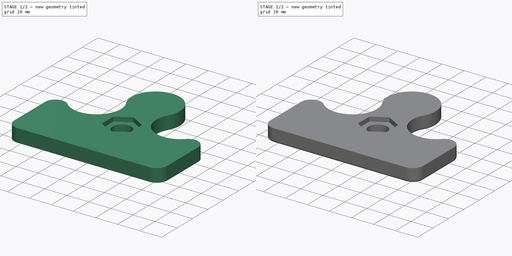
[diagram: build sequence overview — one tinted view per stage of 2, left to right]
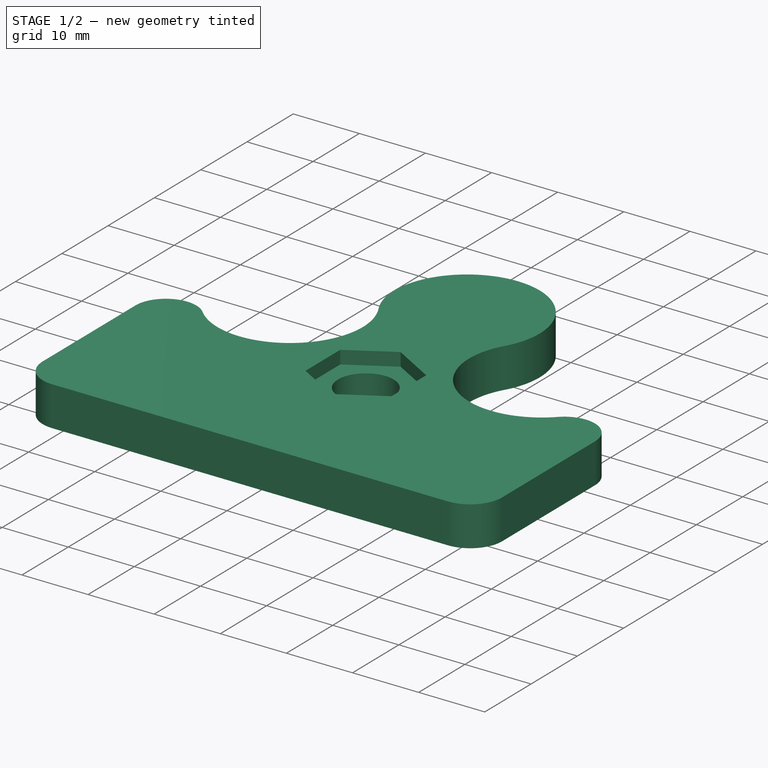
[diagram: stage 1 of 2 — iso view after this stage's code; geometry added in this stage tinted green]
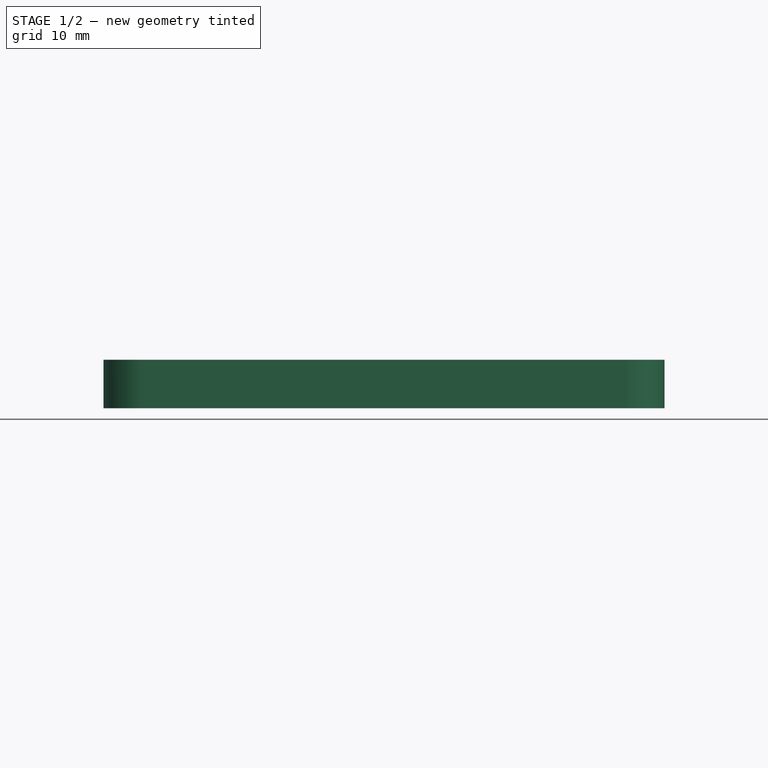
[diagram: stage 1 of 2 — front view after this stage's code; geometry added in this stage tinted green]
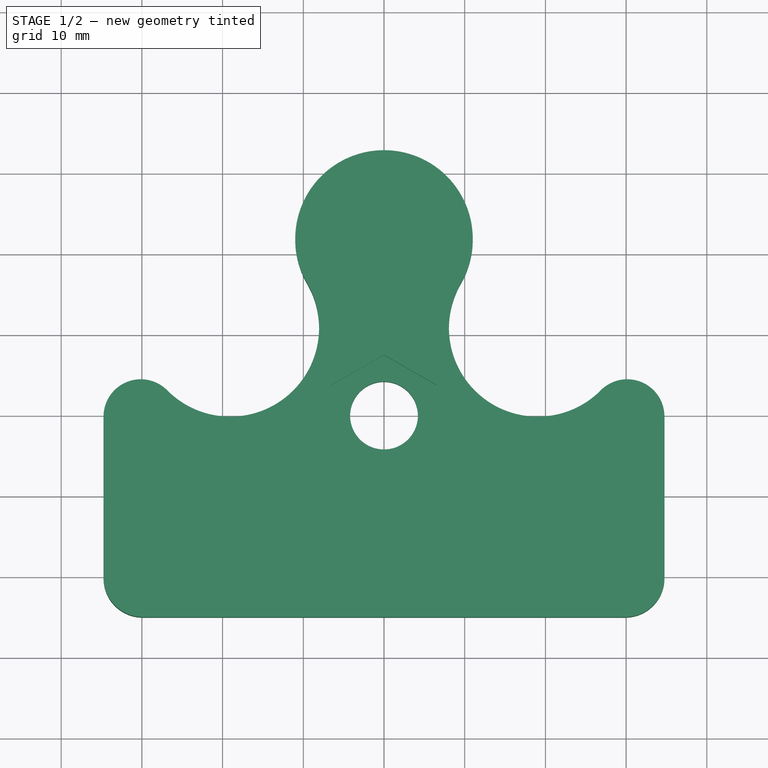
[diagram: stage 1 of 2 — top view after this stage's code; geometry added in this stage tinted green]
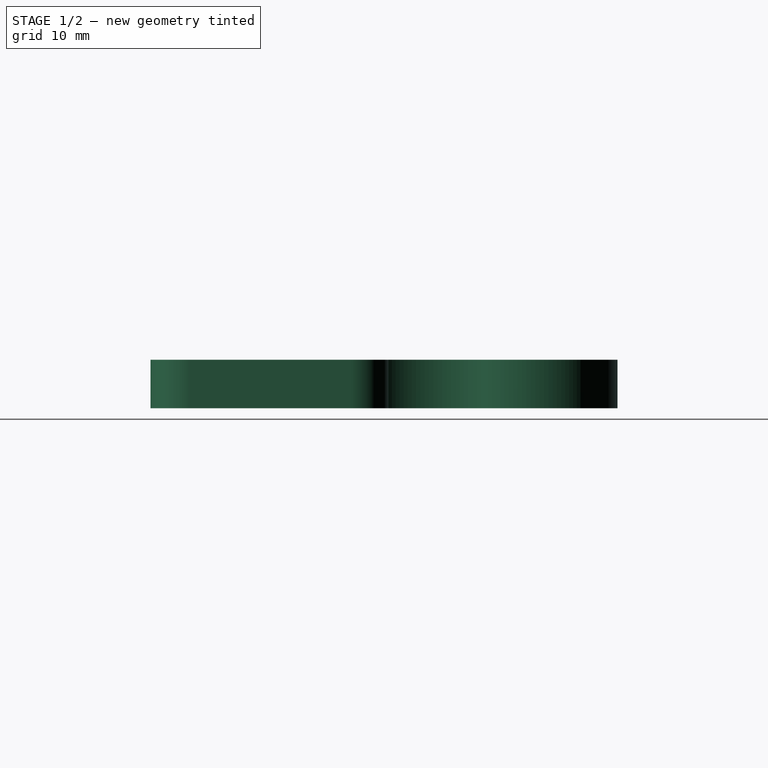
[diagram: stage 1 of 2 — right view after this stage's code; geometry added in this stage tinted green]
FCSTD DOCUMENT  (FreeCAD 0.19R24291 (Git))
Label: Переворотный механизм
License: All rights reserved
LicenseURL: http://en.wikipedia.org/wiki/All_rights_reserved
objects: Sketcher::SketchObject×2, Part::Feature×1, PartDesign::Pad×1, PartDesign::Pocket×1, PartDesign::Fillet×1, PartDesign::Body×1
note: 10 computed .brp shape members not serialized (recipe doc carries the construction recipe); baked Part::Feature solids carry a one-line shape summary decoded from their .brp

FEATURE [Part::Feature] Part__Feature  label="Shapes"
  shape: bbox 70.62 x 59.3 x 10 mm, 49 faces (baked)
FEATURE [Sketcher::SketchObject] Sketch
  FullyConstrained = false
  MapMode = 5
  Support = -> [XY_Plane]
  sketch-geometry (11):
    g0: ArcOfCircle CenterX=0 CenterY=21.8515 CenterZ=0 NormalX=0 NormalY=0 NormalZ=1 AngleXU=0 Radius=11 StartAngle=5.75864 EndAngle=9.94933
    g1: ArcOfCircle CenterX=19.0421 CenterY=10.8334 CenterZ=0 NormalX=0 NormalY=0 NormalZ=1 AngleXU=0 Radius=11 StartAngle=2.61704 EndAngle=5.50287
    g2: ArcOfCircle CenterX=30.1376 CenterY=-0.15 CenterZ=0 NormalX=0 NormalY=0 NormalZ=1 AngleXU=0 Radius=4.61236 StartAngle=5.11764e-08 EndAngle=2.36127
    g3: ArcOfCircle CenterX=29.9 CenterY=-20.15 CenterZ=0 NormalX=0 NormalY=0 NormalZ=1 AngleXU=0 Radius=4.85 StartAngle=4.71239 EndAngle=6.28319
    g4: ArcOfCircle CenterX=-29.9 CenterY=-20.15 CenterZ=0 NormalX=0 NormalY=0 NormalZ=1 AngleXU=0 Radius=4.85 StartAngle=3.14159 EndAngle=4.71239
    g5: ArcOfCircle CenterX=-30.1376 CenterY=-0.15 CenterZ=0 NormalX=0 NormalY=0 NormalZ=1 AngleXU=0 Radius=4.61236 StartAngle=0.780319 EndAngle=3.14159
    g6: ArcOfCircle CenterX=-19.0421 CenterY=10.8334 CenterZ=0 NormalX=0 NormalY=0 NormalZ=1 AngleXU=0 Radius=11 StartAngle=3.92191 EndAngle=6.80773
    g7: LineSegment StartX=-34.75 StartY=-0.15 StartZ=0 EndX=-34.75 EndY=-20.15 EndZ=0
    g8: LineSegment StartX=34.75 StartY=-0.15 StartZ=0 EndX=34.75 EndY=-20.15 EndZ=0
    g9: LineSegment StartX=-29.9 StartY=-25 StartZ=0 EndX=29.9 EndY=-25 EndZ=0
    g10: Circle CenterX=0 CenterY=0 CenterZ=0 NormalX=0 NormalY=0 NormalZ=1 AngleXU=0 Radius=4.2
  constraints (34):
    c: Coincident(g9,g4)
    c: Coincident(g4,g7)
    c: Coincident(g7,g5)
    c: Coincident(g5,g6)
    c: Coincident(g6,g0)
    c: Coincident(g0,g1)
    c: Coincident(g1,g2)
    c: Coincident(g2,g8)
    c: Coincident(g8,g3)
    c: Coincident(g3,g9)
    c: Tangent(g0,g6)
    c: Tangent(g6,g5)
    c: Tangent(g5,g7)
    c: Tangent(g7,g4)
    c: Tangent(g4,g9)
    c: Tangent(g9,g3)
    c: Tangent(g3,g8)
    c: Tangent(g8,g2)
    c: Tangent(g2,g1)
    c: Tangent(g1,g0)
    c: Equal(g1,g6)
    c: Equal(g2,g5)
    c: Equal(g8,g7)
    c: Equal(g4,g3)
    c: Horizontal(g9)
    c: PointOnObject(g0,g-2)
    c: Vertical(g8)
    c: Vertical(g7)
    c: Horizontal(g0,g0)
    c: DistanceX(g4,g3) = 69.5
    c: Radius(g1) = 11
    c: Radius(g0) = 11
    c: Distance(g7) = 20
    c: Radius(g10) = 4.2
FEATURE [PartDesign::Pad] Pad
  Direction = (1,1,1)
  Length = 6
  Length2 = 100
  Profile = -> Sketch
  Type = 0
FEATURE [Sketcher::SketchObject] Sketch001
  FullyConstrained = true
  MapMode = 5
  Placement = pos=(0,0,6) rot=(0,0,1;0rad)
  Support = -> [Pad]
  sketch-geometry (7):
    g0: LineSegment StartX=6.5 StartY=3.75278 StartZ=0 EndX=5.0431e-12 EndY=7.50555 EndZ=0
    g1: LineSegment StartX=5.0433e-12 StartY=7.50555 StartZ=0 EndX=-6.5 EndY=3.75278 EndZ=0
    g2: LineSegment StartX=-6.5 StartY=3.75278 StartZ=0 EndX=-6.5 EndY=-3.75278 EndZ=0
    g3: LineSegment StartX=-6.5 StartY=-3.75278 StartZ=0 EndX=-6.1187e-12 EndY=-7.50555 EndZ=0
    g4: LineSegment StartX=-6.1187e-12 StartY=-7.50555 StartZ=0 EndX=6.5 EndY=-3.75278 EndZ=0
    g5: LineSegment StartX=6.5 StartY=-3.75278 StartZ=0 EndX=6.5 EndY=3.75278 EndZ=0
    g6: Circle CenterX=0 CenterY=0 CenterZ=0 NormalX=0 NormalY=0 NormalZ=1 AngleXU=0 Radius=7.50555
  constraints (16):
    c: Coincident(g0,g1)
    c: Coincident(g1,g2)
    c: Coincident(g2,g3)
    c: Coincident(g3,g4)
    c: Coincident(g4,g5)
    c: Coincident(g5,g0)
    c: Equal(g0, g1-g5) x5
    c: PointOnObject(g0,g6)
    c: PointOnObject(g1,g6)
    c: PointOnObject(g2,g6)
    c: PointOnObject(g3,g6)
    c: PointOnObject(g4,g6)
    c: PointOnObject(g5,g6)
    c: Coincident(g6,g-1)
    c: Distance(g4,g2) = 13
    c: Vertical(g5)
FEATURE [PartDesign::Pocket] Pocket
  BaseFeature = -> Pad
  Length = 2
  Length2 = 100
  Profile = -> Sketch001
  Type = 0
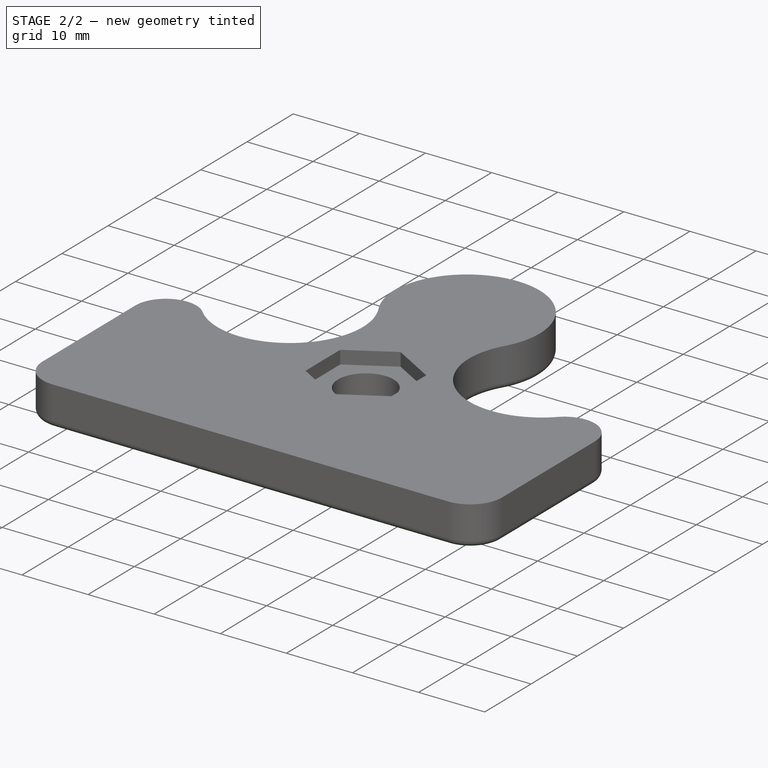
[diagram: stage 2 of 2 — iso view after this stage's code; geometry added in this stage tinted green]
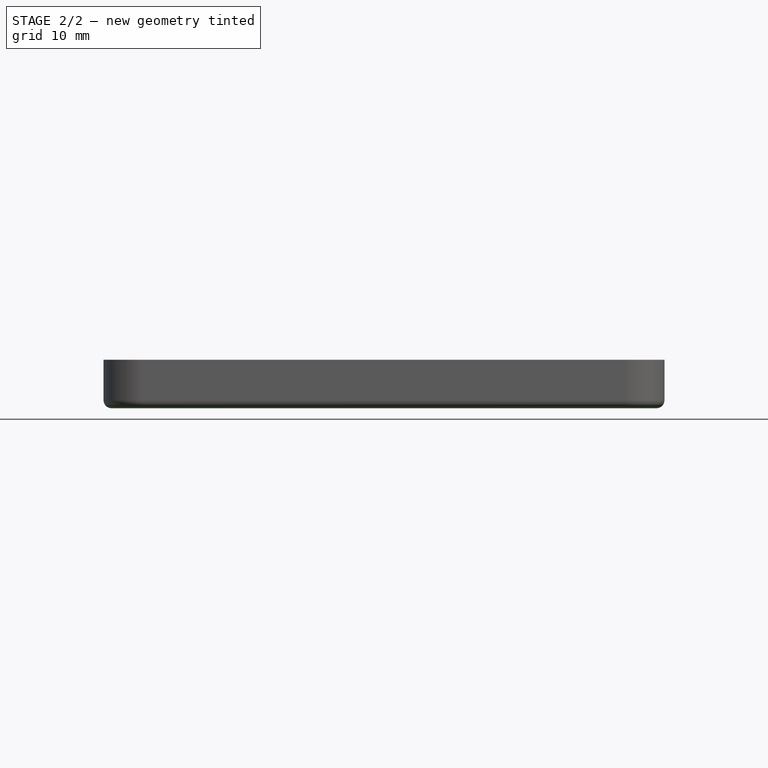
[diagram: stage 2 of 2 — front view after this stage's code; geometry added in this stage tinted green]
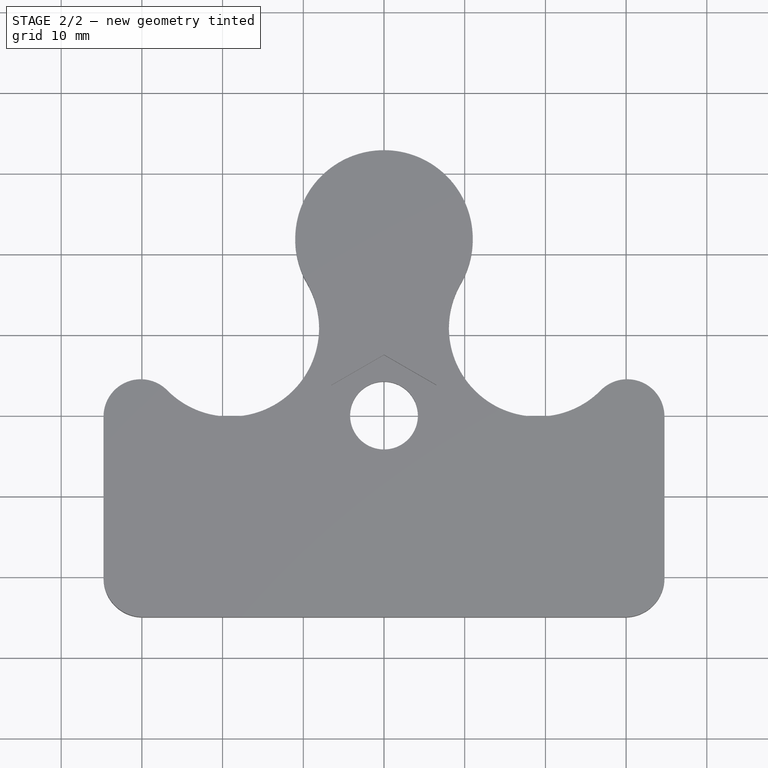
[diagram: stage 2 of 2 — top view after this stage's code; geometry added in this stage tinted green]
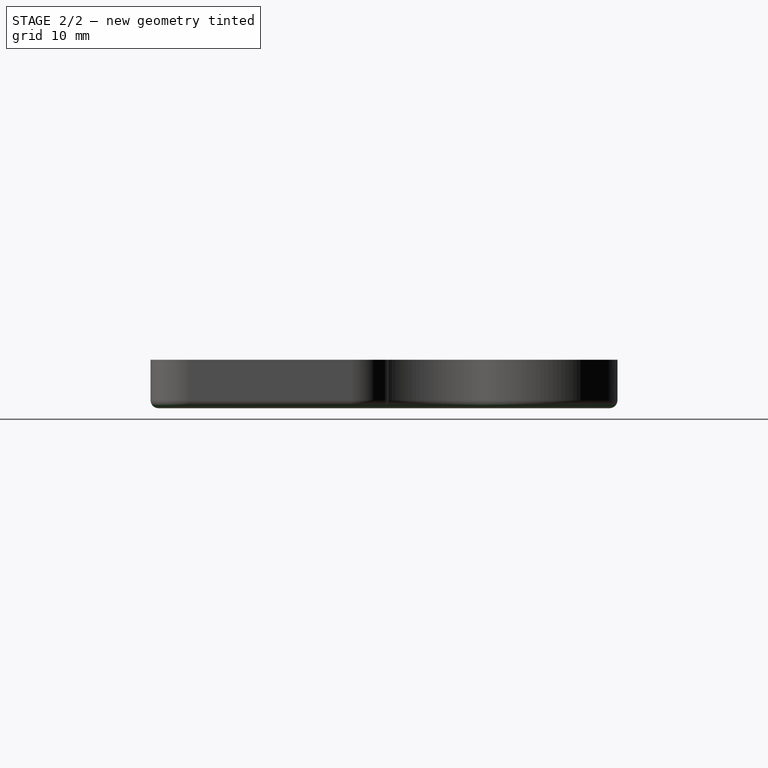
[diagram: stage 2 of 2 — right view after this stage's code; geometry added in this stage tinted green]
FEATURE [PartDesign::Fillet] Fillet
  Base = -> Pocket [Edge9,Edge3,Edge6,Edge17,Edge16,Edge15,Edge14,Edge13,Edge12,Edge11,Edge18]
  BaseFeature = -> Pocket
  Radius = 1
  SupportTransform = false
FEATURE [PartDesign::Body] Body
  Group = -> [Sketch,Pad,Sketch001,Pocket,Fillet]
  Origin = -> Origin
  Tip = -> Fillet
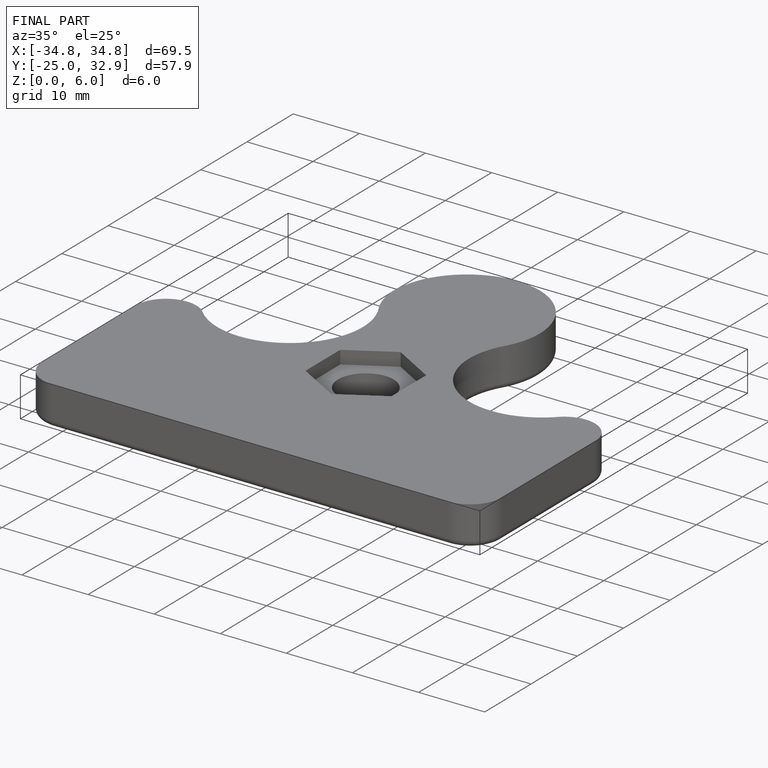
[diagram: finished part — iso view with bounding-box wireframe]
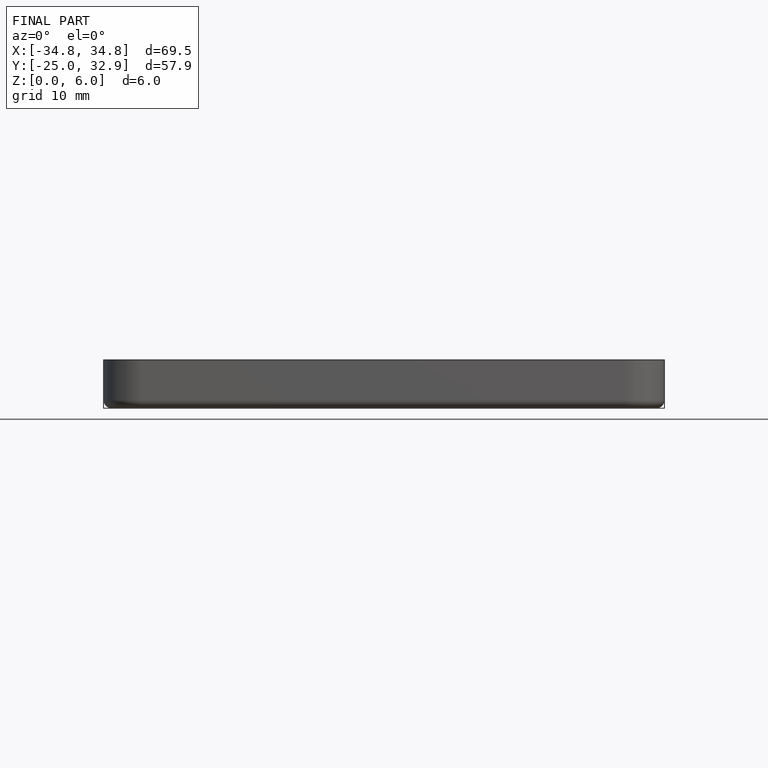
[diagram: finished part — front view with bounding-box wireframe]
